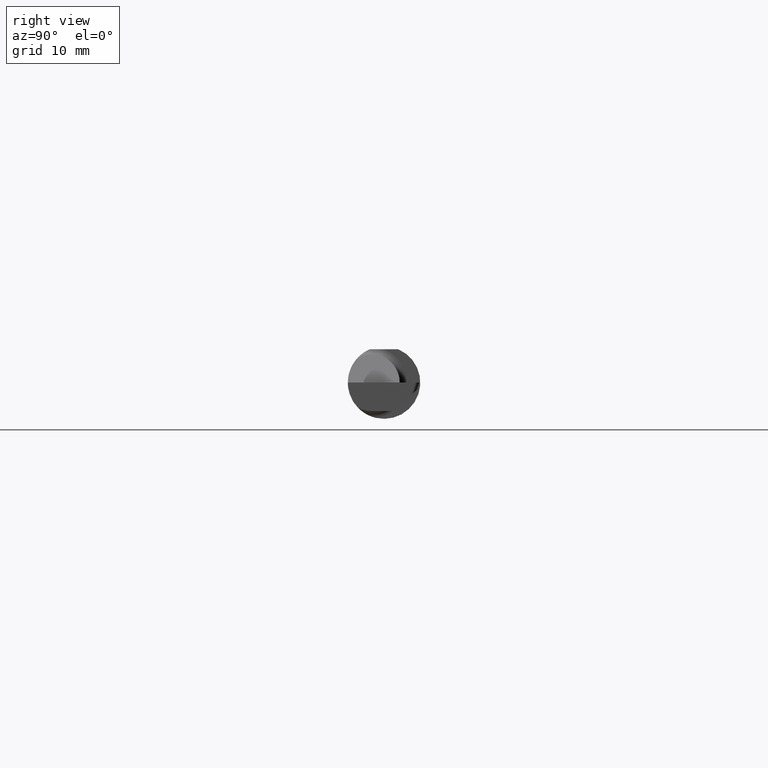
[diagram: clean part render]
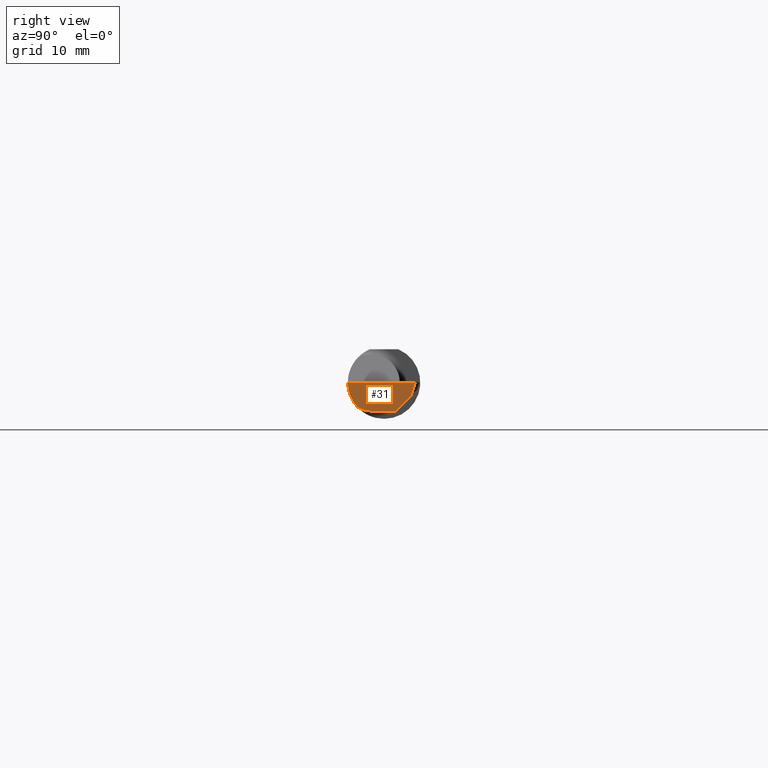
[diagram: same view with one face highlighted and labeled with its STEP entity id]
A machine part, right view. The second image highlights one B-rep face of the part: STEP entity #31.
In plain terms, the highlighted planar face has unit normal (-0.9992, 0.0174, 0.0349).
Its self-contained STEP definition (entity closure, byte-faithful):
#31 = ADVANCED_FACE ( 'NONE', ( #673 ), #606, .F. ) ;
#68 =( BOUNDED_CURVE ( )  B_SPLINE_CURVE ( 3, ( #712, #215, #516, #716 ),
 .UNSPECIFIED., .F., .T. ) 
 B_SPLINE_CURVE_WITH_KNOTS ( ( 4, 4 ),
 ( 0.3451966888489940710, 1.107331509589511098 ),
 .UNSPECIFIED. ) 
 CURVE ( )  GEOMETRIC_REPRESENTATION_ITEM ( )  RATIONAL_B_SPLINE_CURVE ( ( 1.000000000000000000, 0.9521787881681383903, 0.9521787881681383903, 1.000000000000000000 ) ) 
 REPRESENTATION_ITEM ( '' )  );
#69 = CARTESIAN_POINT ( 'NONE',  ( 2.498159429761094508, 0.09306448537118866549, -0.04467165190985956935 ) ) ;
#80 = VECTOR ( 'NONE', #621, 39.37007874015748854 ) ;
#87 = DIRECTION ( 'NONE',  ( -0.9992386149554827179, 0.01744177490282529386, 0.03489949670250104552 ) ) ;
#92 = EDGE_CURVE ( 'NONE', #594, #480, #797, .T. ) ;
#93 = DIRECTION ( 'NONE',  ( -0.01745240643727864055, -0.9998476951563912696, 0.000000000000000000 ) ) ;
#114 = CARTESIAN_POINT ( 'NONE',  ( 2.493904409643075581, -0.04400000000000004602, -0.09800000000000001765 ) ) ;
#130 = EDGE_CURVE ( 'NONE', #677, #301, #216, .T. ) ;
#160 = DIRECTION ( 'NONE',  ( 0.03490480639812536257, 0.000000000000000000, 0.9993906415863165194 ) ) ;
#188 = VECTOR ( 'NONE', #754, 39.37007874015748854 ) ;
#205 = CARTESIAN_POINT ( 'NONE',  ( 2.493502479154699358, -0.09042045454545437344, -0.08630840862739515285 ) ) ;
#215 = CARTESIAN_POINT ( 'NONE',  ( 2.493932522392288131, -0.1128945894460738203, -0.06276352435079114722 ) ) ;
#216 = LINE ( 'NONE', #335, #586 ) ;
#240 = CARTESIAN_POINT ( 'NONE',  ( 2.499988124127622946, 0.1084461686550173415, 0.000000000000000000 ) ) ;
#251 = CARTESIAN_POINT ( 'NONE',  ( 2.495818186131870231, 0.04836818798314927031, -0.08936794929789945718 ) ) ;
#299 = CARTESIAN_POINT ( 'NONE',  ( 2.499998056271878877, 0.1090151808183310173, 0.000000000000000000 ) ) ;
#301 = VERTEX_POINT ( 'NONE', #693 ) ;
#308 = ORIENTED_EDGE ( 'NONE', *, *, #341, .F. ) ;
#322 = ORIENTED_EDGE ( 'NONE', *, *, #92, .T. ) ;
#335 = CARTESIAN_POINT ( 'NONE',  ( 2.493958780969530498, -0.04088506879356347545, -0.09800000000000001765 ) ) ;
#341 = EDGE_CURVE ( 'NONE', #404, #446, #68, .T. ) ;
#343 = CARTESIAN_POINT ( 'NONE',  ( 2.499995298646839448, 0.1085065156349822868, 0.0001752603556491070331 ) ) ;
#363 = ORIENTED_EDGE ( 'NONE', *, *, #641, .T. ) ;
#380 = ORIENTED_EDGE ( 'NONE', *, *, #130, .F. ) ;
#404 = VERTEX_POINT ( 'NONE', #205 ) ;
#432 = LINE ( 'NONE', #684, #80 ) ;
#446 = VERTEX_POINT ( 'NONE', #776 ) ;
#454 = EDGE_CURVE ( 'NONE', #404, #301, #650, .T. ) ;
#470 = CARTESIAN_POINT ( 'NONE',  ( 2.493502479154699358, -0.09042045454545437344, -0.08630840862739515285 ) ) ;
#480 = VERTEX_POINT ( 'NONE', #240 ) ;
#483 = DIRECTION ( 'NONE',  ( 0.03867711768363092661, 0.3253245514560478280, 0.9448111011136606230 ) ) ;
#516 = CARTESIAN_POINT ( 'NONE',  ( 2.494776490973177552, -0.1250000000000000278, -0.03254916765648419030 ) ) ;
#518 = CARTESIAN_POINT ( 'NONE',  ( 2.495366029356153703, 0.03973613728104880699, -0.09800000000000001765 ) ) ;
#586 = VECTOR ( 'NONE', #93, 39.37007874015748143 ) ;
#594 = VERTEX_POINT ( 'NONE', #69 ) ;
#606 = PLANE ( 'NONE',  #667 ) ;
#621 = DIRECTION ( 'NONE',  ( -0.01745240643727864055, -0.9998476951563912696, 0.000000000000000000 ) ) ;
#629 = ORIENTED_EDGE ( 'NONE', *, *, #655, .F. ) ;
#641 = EDGE_CURVE ( 'NONE', #480, #446, #432, .T. ) ;
#650 =( BOUNDED_CURVE ( )  B_SPLINE_CURVE ( 3, ( #470, #728, #665, #114 ),
 .UNSPECIFIED., .F., .F. ) 
 B_SPLINE_CURVE_WITH_KNOTS ( ( 4, 4 ),
 ( 6.253187659403681486, 6.746650124384971470 ),
 .UNSPECIFIED. ) 
 CURVE ( )  GEOMETRIC_REPRESENTATION_ITEM ( )  RATIONAL_B_SPLINE_CURVE ( ( 1.000000000000000000, 0.9798106333074688701, 0.9798106333074688701, 1.000000000000000000 ) ) 
 REPRESENTATION_ITEM ( '' )  );
#652 = VECTOR ( 'NONE', #483, 39.37007874015748143 ) ;
#655 = EDGE_CURVE ( 'NONE', #594, #677, #815, .T. ) ;
#665 = CARTESIAN_POINT ( 'NONE',  ( 2.493620144954195261, -0.06028551311893202286, -0.09800000000000008704 ) ) ;
#667 = AXIS2_PLACEMENT_3D ( 'NONE', #299, #87, #160 ) ;
#673 = FACE_OUTER_BOUND ( 'NONE', #691, .T. ) ;
#677 = VERTEX_POINT ( 'NONE', #518 ) ;
#684 = CARTESIAN_POINT ( 'NONE',  ( 2.499998056271878877, 0.1090151808183310173, 0.000000000000000000 ) ) ;
#691 = EDGE_LOOP ( 'NONE', ( #629, #322, #363, #308, #763, #380 ) ) ;
#693 = CARTESIAN_POINT ( 'NONE',  ( 2.493904409643075581, -0.04400000000000004602, -0.09800000000000001765 ) ) ;
#712 = CARTESIAN_POINT ( 'NONE',  ( 2.493502479154699358, -0.09042045454545437344, -0.08630840862739515285 ) ) ;
#716 = CARTESIAN_POINT ( 'NONE',  ( 2.495913306096507522, -0.1250000000000000000, 0.000000000000000000 ) ) ;
#728 = CARTESIAN_POINT ( 'NONE',  ( 2.493483407481765113, -0.07607783494366275601, -0.09402249966297455963 ) ) ;
#754 = DIRECTION ( 'NONE',  ( -0.03701368837992599636, -0.7066222423871549863, -0.7066222423871628688 ) ) ;
#763 = ORIENTED_EDGE ( 'NONE', *, *, #454, .T. ) ;
#776 = CARTESIAN_POINT ( 'NONE',  ( 2.495913306096507522, -0.1250000000000000000, 0.000000000000000000 ) ) ;
#797 = LINE ( 'NONE', #343, #652 ) ;
#815 = LINE ( 'NONE', #251, #188 ) ;